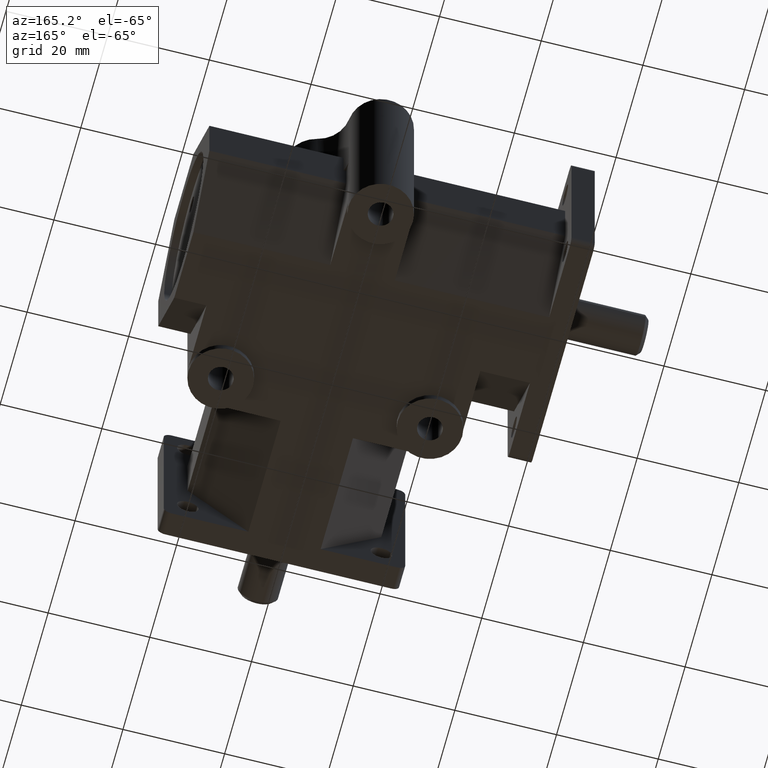
[diagram: clean part render]
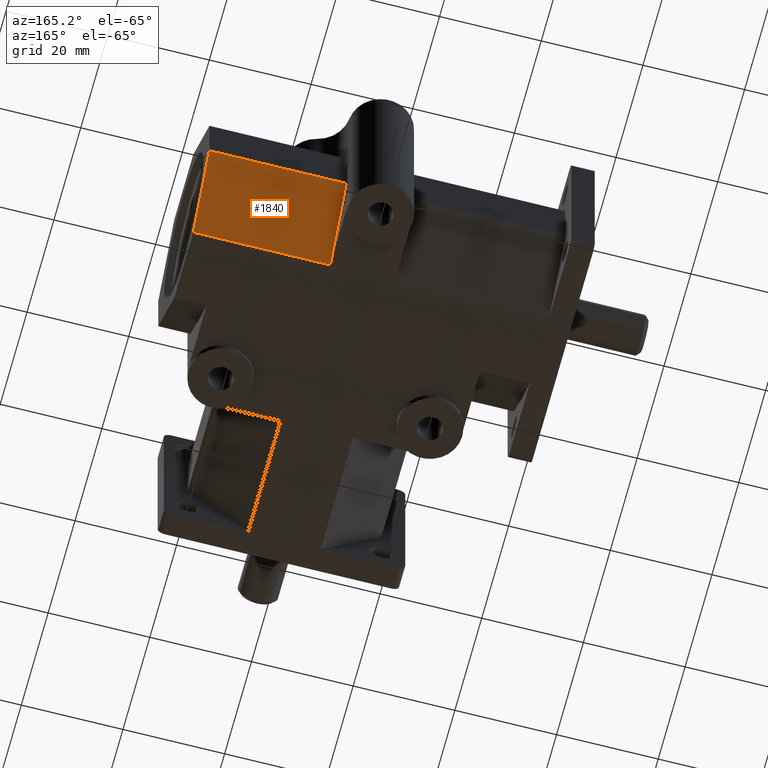
[diagram: same view with one face highlighted and labeled with its STEP entity id]
A machine part, auxiliary view. The second image highlights one B-rep face of the part: STEP entity #1840.
In plain terms, the highlighted planar face has unit normal (0, 0.7071, -0.7071).
Its self-contained STEP definition (entity closure, byte-faithful):
#77=PLANE('',#2027);
#168=FACE_OUTER_BOUND('',#293,.T.);
#293=EDGE_LOOP('',(#1488,#1489,#1490,#1491));
#498=LINE('',#2879,#671);
#548=LINE('',#3012,#721);
#552=LINE('',#3019,#725);
#557=LINE('',#3028,#730);
#671=VECTOR('',#2325,1.);
#721=VECTOR('',#2437,1.);
#725=VECTOR('',#2443,1.);
#730=VECTOR('',#2450,1.);
#873=VERTEX_POINT('',#2876);
#874=VERTEX_POINT('',#2878);
#926=VERTEX_POINT('',#3011);
#928=VERTEX_POINT('',#3018);
#1068=EDGE_CURVE('',#874,#873,#498,.T.);
#1136=EDGE_CURVE('',#926,#874,#548,.T.);
#1140=EDGE_CURVE('',#928,#926,#552,.T.);
#1145=EDGE_CURVE('',#873,#928,#557,.F.);
#1488=ORIENTED_EDGE('',*,*,#1136,.T.);
#1489=ORIENTED_EDGE('',*,*,#1068,.T.);
#1490=ORIENTED_EDGE('',*,*,#1145,.T.);
#1491=ORIENTED_EDGE('',*,*,#1140,.T.);
#1840=ADVANCED_FACE('',(#168),#77,.T.);
#2027=AXIS2_PLACEMENT_3D('',#3027,#2448,#2449);
#2325=DIRECTION('',(-1.,0.,0.));
#2437=DIRECTION('',(0.,-0.707106781186548,-0.707106781186547));
#2443=DIRECTION('',(1.,0.,0.));
#2448=DIRECTION('center_axis',(0.,0.707106781186547,-0.707106781186548));
#2449=DIRECTION('ref_axis',(1.,0.,0.));
#2450=DIRECTION('',(0.,-0.707106781186548,-0.707106781186547));
#2876=CARTESIAN_POINT('',(6.35,62.6745,-17.526));
#2878=CARTESIAN_POINT('',(33.274,62.6745,-17.526));
#2879=CARTESIAN_POINT('',(3.175,62.6745,-17.526));
#3011=CARTESIAN_POINT('',(33.274,74.6125,-5.588));
#3012=CARTESIAN_POINT('',(33.274,-28.5911059611957,-108.791605961196));
#3018=CARTESIAN_POINT('',(6.35,74.6125,-5.588));
#3019=CARTESIAN_POINT('',(3.175,74.6125,-5.588));
#3027=CARTESIAN_POINT('Origin',(3.175,68.6435,-11.557));
#3028=CARTESIAN_POINT('',(6.35,73.406,-6.7945));